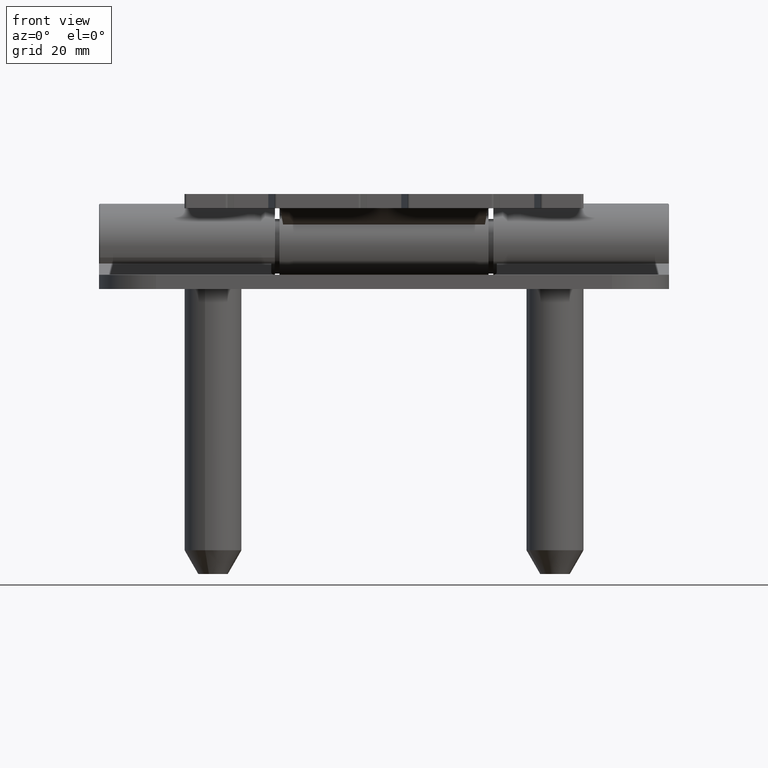
[diagram: clean part render]
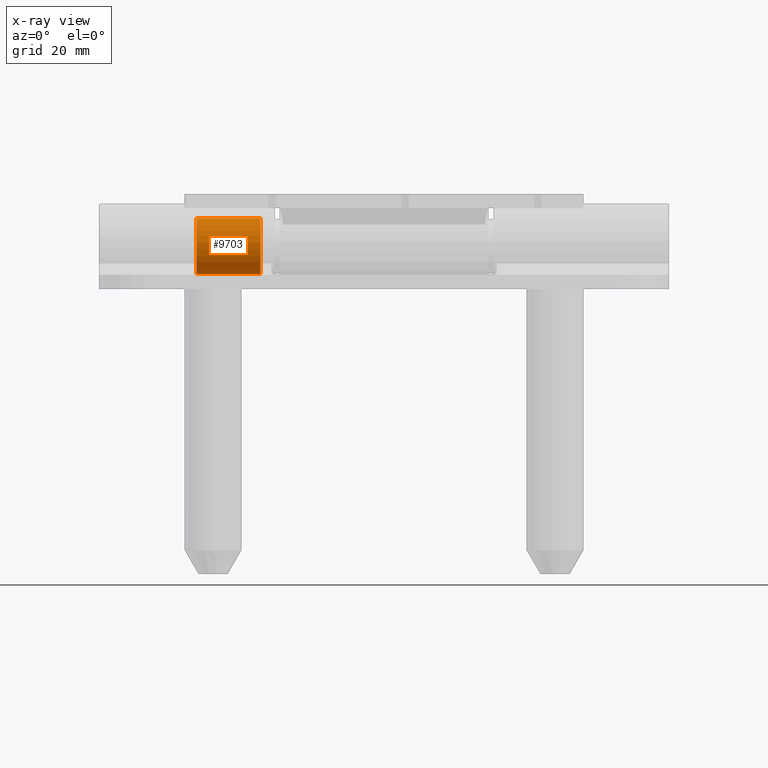
[diagram: x-ray — body ghosted, one internal face saturated and labeled with its STEP entity id]
A machine part, front view, then the same camera in x-ray: the body is ghosted and one INTERNAL B-rep face — a face not visible from any outside direction — is saturated and labeled: STEP entity #9703.
In plain terms, the highlighted cylindrical surface (edge-blend (fillet) strip) has radius 5.9 mm, axis along (1, -0, 0).
Its self-contained STEP definition (entity closure, byte-faithful):
#85 = LINE ( 'NONE', #11509, #3729 ) ;
#435 = DIRECTION ( 'NONE',  ( -1.000000000000000000, 0.0000000000000000000, 0.0000000000000000000 ) ) ;
#441 = DIRECTION ( 'NONE',  ( -1.000000000000000000, 0.0000000000000000000, 0.0000000000000000000 ) ) ;
#456 = CARTESIAN_POINT ( 'NONE',  ( 0.0000000000000000000, -2.558717127065791400E-018, 5.900000000000038500 ) ) ;
#3545 = VERTEX_POINT ( 'NONE', #12097 ) ;
#3729 = VECTOR ( 'NONE', #14359, 1000.000000000000000 ) ;
#3908 = ORIENTED_EDGE ( 'NONE', *, *, #13984, .T. ) ;
#4142 = ORIENTED_EDGE ( 'NONE', *, *, #5968, .T. ) ;
#4601 = DIRECTION ( 'NONE',  ( 0.0000000000000000000, -4.336808689941990800E-019, 1.000000000000000000 ) ) ;
#4656 = CARTESIAN_POINT ( 'NONE',  ( 13.49999999999999800, 0.0000000000000000000, 0.0000000000000000000 ) ) ;
#4795 = DIRECTION ( 'NONE',  ( 0.0000000000000000000, -4.336808689941990800E-019, 1.000000000000000000 ) ) ;
#4849 = EDGE_CURVE ( 'NONE', #17381, #11881, #85, .T. ) ;
#5656 = CYLINDRICAL_SURFACE ( 'NONE', #11339, 5.900000000000037700 ) ;
#5968 = EDGE_CURVE ( 'NONE', #17381, #3545, #7708, .T. ) ;
#7708 = CIRCLE ( 'NONE', #9708, 5.900000000000036800 ) ;
#8101 = LINE ( 'NONE', #16867, #16674 ) ;
#8682 = CARTESIAN_POINT ( 'NONE',  ( 0.0000000000000000000, 7.251003286240045500E-016, -5.900000000000002100 ) ) ;
#8892 = CARTESIAN_POINT ( 'NONE',  ( -26.93224107340441600, 0.0000000000000000000, 0.0000000000000000000 ) ) ;
#9067 = DIRECTION ( 'NONE',  ( -1.000000000000000000, 0.0000000000000000000, 0.0000000000000000000 ) ) ;
#9232 = ORIENTED_EDGE ( 'NONE', *, *, #12285, .F. ) ;
#9611 = CARTESIAN_POINT ( 'NONE',  ( 13.49999999999999800, -2.558717127065790600E-018, 5.900000000000036800 ) ) ;
#9703 = ADVANCED_FACE ( 'NONE', ( #11052 ), #5656, .T. ) ;
#9708 = AXIS2_PLACEMENT_3D ( 'NONE', #4656, #435, #15671 ) ;
#10921 = EDGE_LOOP ( 'NONE', ( #4142, #3908, #9232, #16361 ) ) ;
#11052 = FACE_OUTER_BOUND ( 'NONE', #10921, .T. ) ;
#11216 = VERTEX_POINT ( 'NONE', #8682 ) ;
#11339 = AXIS2_PLACEMENT_3D ( 'NONE', #8892, #17293, #4795 ) ;
#11509 = CARTESIAN_POINT ( 'NONE',  ( -26.93224107340441600, -2.558717127065791000E-018, 5.900000000000037700 ) ) ;
#11881 = VERTEX_POINT ( 'NONE', #456 ) ;
#12097 = CARTESIAN_POINT ( 'NONE',  ( 13.49999999999999800, 7.251003286240043500E-016, -5.900000000000000400 ) ) ;
#12285 = EDGE_CURVE ( 'NONE', #11881, #11216, #17173, .T. ) ;
#13440 = AXIS2_PLACEMENT_3D ( 'NONE', #14548, #9067, #4601 ) ;
#13984 = EDGE_CURVE ( 'NONE', #3545, #11216, #8101, .T. ) ;
#14359 = DIRECTION ( 'NONE',  ( -1.000000000000000000, 0.0000000000000000000, 0.0000000000000000000 ) ) ;
#14548 = CARTESIAN_POINT ( 'NONE',  ( 0.0000000000000000000, 0.0000000000000000000, 0.0000000000000000000 ) ) ;
#15671 = DIRECTION ( 'NONE',  ( 0.0000000000000000000, -4.336808689941990800E-019, 1.000000000000000000 ) ) ;
#16361 = ORIENTED_EDGE ( 'NONE', *, *, #4849, .F. ) ;
#16674 = VECTOR ( 'NONE', #441, 1000.000000000000000 ) ;
#16867 = CARTESIAN_POINT ( 'NONE',  ( -26.93224107340441600, 7.251003286240088800E-016, -5.900000000000037700 ) ) ;
#17173 = CIRCLE ( 'NONE', #13440, 5.900000000000038500 ) ;
#17293 = DIRECTION ( 'NONE',  ( -1.000000000000000000, 0.0000000000000000000, 0.0000000000000000000 ) ) ;
#17381 = VERTEX_POINT ( 'NONE', #9611 ) ;